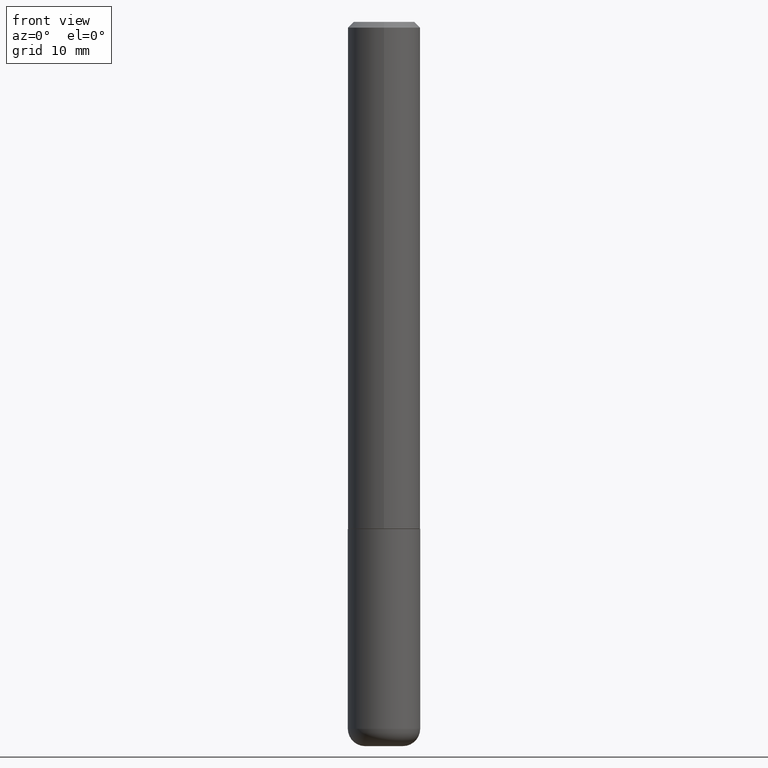
[diagram: clean part render]
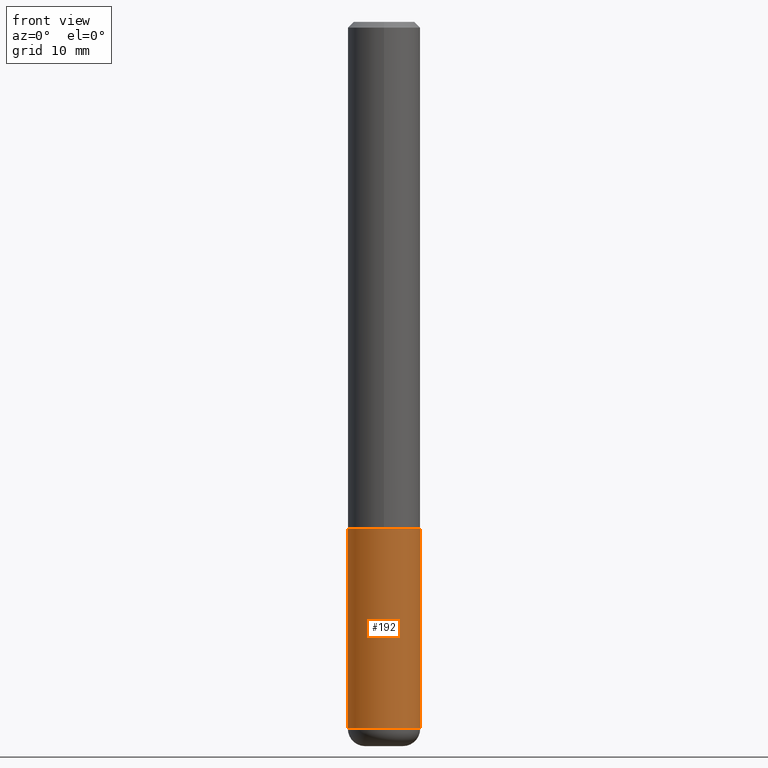
[diagram: same view with one face highlighted and labeled with its STEP entity id]
A machine part, front view. The second image highlights one B-rep face of the part: STEP entity #192.
In plain terms, the highlighted cylindrical surface (edge-blend (fillet) strip) has radius 3.175 mm, axis along (-0, 0, 1).
Its self-contained STEP definition (entity closure, byte-faithful):
#4 = CARTESIAN_POINT ( 'NONE',  ( 4.279570410823989044E-29, -6.110092342975505460E-15, -1.750000000000000222 ) ) ;
#13 = CARTESIAN_POINT ( 'NONE',  ( 0.1249999999999999861, -9.392084801488058387E-15, -2.440000000000000391 ) ) ;
#17 = ORIENTED_EDGE ( 'NONE', *, *, #38, .T. ) ;
#23 = AXIS2_PLACEMENT_3D ( 'NONE', #130, #255, #166 ) ;
#25 = ORIENTED_EDGE ( 'NONE', *, *, #220, .T. ) ;
#27 = ORIENTED_EDGE ( 'NONE', *, *, #145, .F. ) ;
#30 = VECTOR ( 'NONE', #339, 39.37007874015748143 ) ;
#33 = DIRECTION ( 'NONE',  ( 1.000000000000000000, -6.982962677686262766E-15, 0.000000000000000000 ) ) ;
#34 = DIRECTION ( 'NONE',  ( -2.445468806185136597E-29, 3.491481338843145583E-15, 1.000000000000000000 ) ) ;
#38 = EDGE_CURVE ( 'NONE', #394, #221, #60, .T. ) ;
#56 = EDGE_LOOP ( 'NONE', ( #27, #25, #17, #264 ) ) ;
#60 = LINE ( 'NONE', #372, #30 ) ;
#66 = DIRECTION ( 'NONE',  ( -2.445468806185136877E-29, 3.491481338843145188E-15, 1.000000000000000000 ) ) ;
#67 = CIRCLE ( 'NONE', #165, 0.1250000000000000000 ) ;
#87 = EDGE_CURVE ( 'NONE', #412, #221, #328, .T. ) ;
#106 = CYLINDRICAL_SURFACE ( 'NONE', #23, 0.1250000000000000000 ) ;
#130 = CARTESIAN_POINT ( 'NONE',  ( 0.000000000000000000, 0.000000000000000000, 0.000000000000000000 ) ) ;
#145 = EDGE_CURVE ( 'NONE', #380, #412, #284, .T. ) ;
#162 = DIRECTION ( 'NONE',  ( -2.445468806185136597E-29, 3.491481338843145583E-15, 1.000000000000000000 ) ) ;
#164 = DIRECTION ( 'NONE',  ( 1.000000000000000000, -6.982962677686262766E-15, 0.000000000000000000 ) ) ;
#165 = AXIS2_PLACEMENT_3D ( 'NONE', #322, #34, #164 ) ;
#166 = DIRECTION ( 'NONE',  ( 1.000000000000000000, -6.982962677686266711E-15, 4.876176775795935793E-29 ) ) ;
#192 = ADVANCED_FACE ( 'NONE', ( #317 ), #106, .T. ) ;
#220 = EDGE_CURVE ( 'NONE', #380, #394, #67, .T. ) ;
#221 = VERTEX_POINT ( 'NONE', #289 ) ;
#225 = CARTESIAN_POINT ( 'NONE',  ( -0.1250000000000000000, 8.881784197001252323E-16, -6.148668862818632227E-30 ) ) ;
#255 = DIRECTION ( 'NONE',  ( -2.445468806185136597E-29, 3.491481338843145583E-15, 1.000000000000000000 ) ) ;
#264 = ORIENTED_EDGE ( 'NONE', *, *, #87, .F. ) ;
#284 = LINE ( 'NONE', #225, #288 ) ;
#288 = VECTOR ( 'NONE', #66, 39.37007874015748143 ) ;
#289 = CARTESIAN_POINT ( 'NONE',  ( 0.1250000000000000000, -6.982962677686288010E-15, -1.750000000000000222 ) ) ;
#317 = FACE_OUTER_BOUND ( 'NONE', #56, .T. ) ;
#322 = CARTESIAN_POINT ( 'NONE',  ( 5.966943887091733341E-29, -8.519214466777275048E-15, -2.440000000000000391 ) ) ;
#328 = CIRCLE ( 'NONE', #405, 0.1250000000000000000 ) ;
#339 = DIRECTION ( 'NONE',  ( -2.445468806185136877E-29, 3.491481338843145188E-15, 1.000000000000000000 ) ) ;
#372 = CARTESIAN_POINT ( 'NONE',  ( 0.1250000000000000000, -8.728703347107833388E-16, 6.095220969744919741E-30 ) ) ;
#380 = VERTEX_POINT ( 'NONE', #399 ) ;
#394 = VERTEX_POINT ( 'NONE', #13 ) ;
#399 = CARTESIAN_POINT ( 'NONE',  ( -0.1249999999999999861, -7.631036047077151393E-15, -2.440000000000000391 ) ) ;
#405 = AXIS2_PLACEMENT_3D ( 'NONE', #4, #162, #33 ) ;
#408 = CARTESIAN_POINT ( 'NONE',  ( -0.1250000000000000000, -6.426474985176265022E-15, -1.750000000000000222 ) ) ;
#412 = VERTEX_POINT ( 'NONE', #408 ) ;